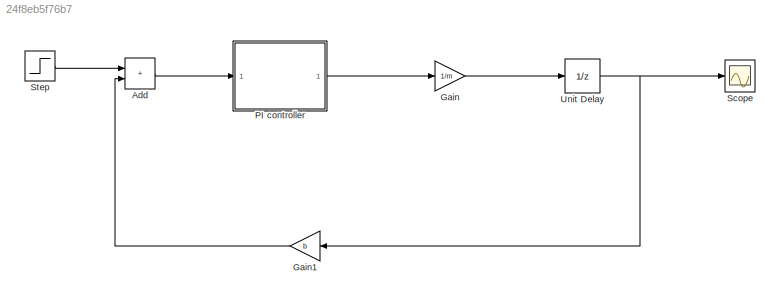
MODEL slx_24f8eb5f76b7
KIND model
CONFIG AbsTol = auto
CONFIG EnableMultiTasking = off
CONFIG FixedStep = auto
CONFIG MaxStep = auto
CONFIG MinStep = auto
CONFIG RelTol = 1e-3
CONFIG SampleTimeConstraint = Unconstrained
CONFIG SolverName = VariableStepAuto
CONFIG StartTime = 0.0
CONFIG StopTime = 10.0
WORKSPACE source: mxarray member
WORKSPACE b: Simulink.Parameter (value not decoded)
WORKSPACE ki: Simulink.Parameter (value not decoded)
WORKSPACE kp: Simulink.Parameter (value not decoded)
WORKSPACE m: Simulink.Parameter (value not decoded)
WORKSPACE ts: Simulink.Parameter (value not decoded)
WORKSPACE u: Simulink.Parameter (value not decoded)
BLOCK [Sum] Add
  IconShape = rectangular
  Ports = [2, 1]
BLOCK [Gain] Gain
  Gain = 1/m
BLOCK [Gain] Gain1
  Gain = b
BLOCK [ModelReference] PI controller
  ModelNameDialog = PI_controller
  ModelReferenceVersion = 1.2
  Ports = [1, 1]
BLOCK [Scope] Scope
  Floating = off
  NumInputPorts = 1
  Ports = [1]
  ScopeSpecificationString = Simulink.scopes.TimeScopeBlockCfg('CurrentConfiguration', extmgr.ConfigurationSet(extmgr.Configuration('Core','General UI',true),extmgr.Configuration('Core','Source UI',true),extmgr.Configuration('Sources','WiredSimulink',true),extmgr.Configuration('Visuals','Time Domain',true,'SerializedDisplays',{struct('MinYLimReal','-1.25025','MaxYLimReal','11.25225','YLabelReal','','MinYLimMag','0.00000','Max...<+1360ch>
BLOCK [Step] Step
  After = u
  SampleTime = 0
BLOCK [UnitDelay] Unit Delay
  HasFrameUpgradeWarning = on
  SampleTime = -1
LINE Add:1 -> PI controller:1
LINE Gain1:1 -> Add:2
LINE Gain:1 -> Unit Delay:1
LINE PI controller:1 -> Gain:1
LINE Step:1 -> Add:1
NET Unit Delay:1 -> Gain1:1, Scope:1
note: NET lines group one-source signal fan-out (src -> all destinations, sorted); 1:1 wires keep LINE
